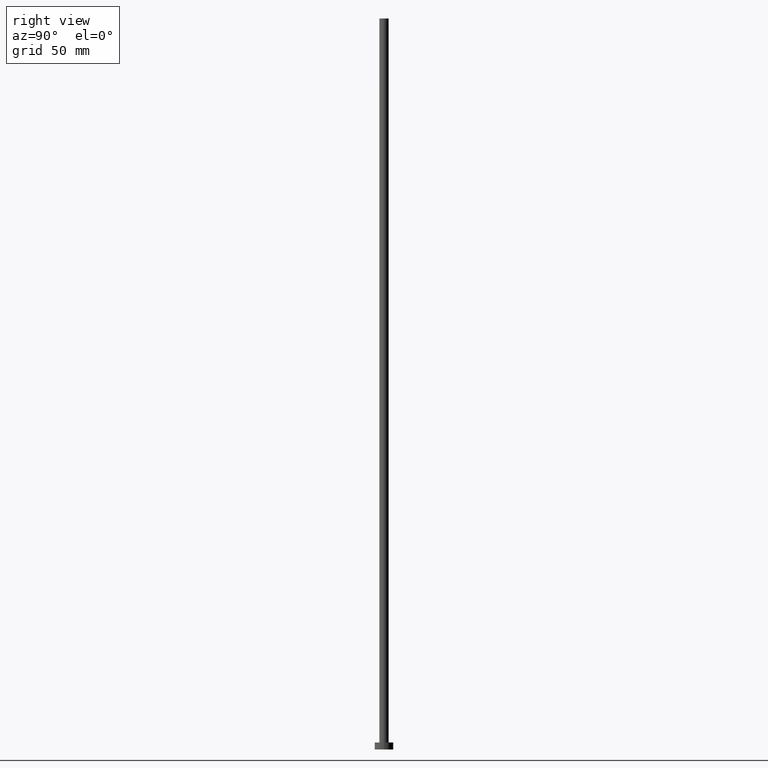
[diagram: clean part render]
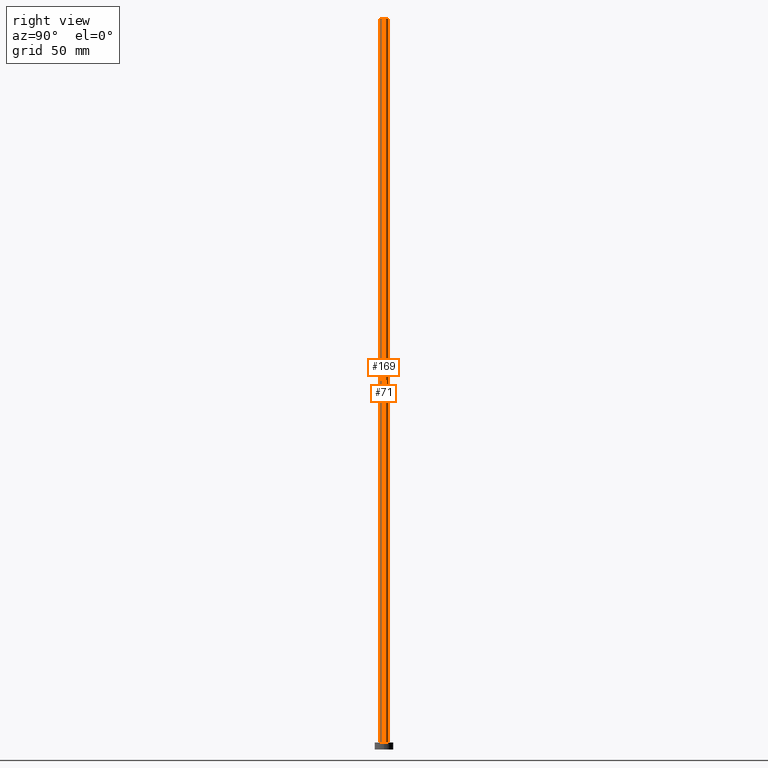
[diagram: same view with one multi-face feature highlighted, each face labeled with its STEP entity id]
A machine part, right view. The highlighted faces form ONE feature: a constant-radius fillet chain: 2 tangent blend faces with common blend radius 2 mm. The faces share edges in the B-rep.
Their STEP definitions:
[1] entity #169 (Cylinder):
#17 = DIRECTION ( 'NONE',  ( 1.000000000000000000, 0.000000000000000000, 0.000000000000000000 ) ) ;
#21 = ORIENTED_EDGE ( 'NONE', *, *, #33, .F. ) ;
#23 = VERTEX_POINT ( 'NONE', #76 ) ;
#33 = EDGE_CURVE ( 'NONE', #23, #48, #139, .T. ) ;
#35 = AXIS2_PLACEMENT_3D ( 'NONE', #233, #253, #17 ) ;
#40 = VERTEX_POINT ( 'NONE', #102 ) ;
#48 = VERTEX_POINT ( 'NONE', #121 ) ;
#53 = DIRECTION ( 'NONE',  ( -0.000000000000000000, -0.000000000000000000, -1.000000000000000000 ) ) ;
#60 = DIRECTION ( 'NONE',  ( 0.000000000000000000, 0.000000000000000000, 1.000000000000000000 ) ) ;
#63 = EDGE_LOOP ( 'NONE', ( #135, #21, #117, #195 ) ) ;
#76 = CARTESIAN_POINT ( 'NONE',  ( -2.000000000000000000, 0.000000000000000000, 315.0000000000000000 ) ) ;
#80 = DIRECTION ( 'NONE',  ( 1.000000000000000000, 0.000000000000000000, 0.000000000000000000 ) ) ;
#90 = DIRECTION ( 'NONE',  ( -1.000000000000000000, 0.000000000000000000, 0.000000000000000000 ) ) ;
#92 = EDGE_CURVE ( 'NONE', #23, #155, #136, .T. ) ;
#102 = CARTESIAN_POINT ( 'NONE',  ( 2.000000000000000000, 2.449293598294706414E-16, 3.000000000000000000 ) ) ;
#113 = DIRECTION ( 'NONE',  ( -0.000000000000000000, -0.000000000000000000, -1.000000000000000000 ) ) ;
#117 = ORIENTED_EDGE ( 'NONE', *, *, #92, .T. ) ;
#121 = CARTESIAN_POINT ( 'NONE',  ( 2.000000000000000000, 2.449293598294706414E-16, 315.0000000000000000 ) ) ;
#133 = VECTOR ( 'NONE', #53, 1000.000000000000000 ) ;
#135 = ORIENTED_EDGE ( 'NONE', *, *, #165, .F. ) ;
#136 = LINE ( 'NONE', #205, #133 ) ;
#139 = CIRCLE ( 'NONE', #204, 2.000000000000000000 ) ;
#141 = CIRCLE ( 'NONE', #35, 2.000000000000000000 ) ;
#144 = VECTOR ( 'NONE', #113, 1000.000000000000000 ) ;
#150 = CARTESIAN_POINT ( 'NONE',  ( 0.000000000000000000, 0.000000000000000000, 315.0000000000000000 ) ) ;
#152 = AXIS2_PLACEMENT_3D ( 'NONE', #188, #206, #90 ) ;
#155 = VERTEX_POINT ( 'NONE', #249 ) ;
#165 = EDGE_CURVE ( 'NONE', #48, #40, #230, .T. ) ;
#169 = ADVANCED_FACE ( 'NONE', ( #234 ), #235, .T. ) ;
#186 = CARTESIAN_POINT ( 'NONE',  ( 2.000000000000000000, 2.449293598294706414E-16, 315.0000000000000000 ) ) ;
#188 = CARTESIAN_POINT ( 'NONE',  ( 0.000000000000000000, 0.000000000000000000, 315.0000000000000000 ) ) ;
#195 = ORIENTED_EDGE ( 'NONE', *, *, #231, .T. ) ;
#204 = AXIS2_PLACEMENT_3D ( 'NONE', #150, #60, #80 ) ;
#205 = CARTESIAN_POINT ( 'NONE',  ( -2.000000000000000000, 0.000000000000000000, 315.0000000000000000 ) ) ;
#206 = DIRECTION ( 'NONE',  ( -0.000000000000000000, -0.000000000000000000, -1.000000000000000000 ) ) ;
#230 = LINE ( 'NONE', #186, #144 ) ;
#231 = EDGE_CURVE ( 'NONE', #155, #40, #141, .T. ) ;
#233 = CARTESIAN_POINT ( 'NONE',  ( 0.000000000000000000, 0.000000000000000000, 3.000000000000000000 ) ) ;
#234 = FACE_OUTER_BOUND ( 'NONE', #63, .T. ) ;
#235 = CYLINDRICAL_SURFACE ( 'NONE', #152, 2.000000000000000000 ) ;
#249 = CARTESIAN_POINT ( 'NONE',  ( -2.000000000000000000, 0.000000000000000000, 3.000000000000000000 ) ) ;
#253 = DIRECTION ( 'NONE',  ( 0.000000000000000000, 0.000000000000000000, 1.000000000000000000 ) ) ;
[2] entity #71 (Cylinder):
#15 = CIRCLE ( 'NONE', #170, 2.000000000000000000 ) ;
#23 = VERTEX_POINT ( 'NONE', #76 ) ;
#30 = DIRECTION ( 'NONE',  ( 0.000000000000000000, 0.000000000000000000, 1.000000000000000000 ) ) ;
#39 = AXIS2_PLACEMENT_3D ( 'NONE', #158, #182, #229 ) ;
#40 = VERTEX_POINT ( 'NONE', #102 ) ;
#48 = VERTEX_POINT ( 'NONE', #121 ) ;
#53 = DIRECTION ( 'NONE',  ( -0.000000000000000000, -0.000000000000000000, -1.000000000000000000 ) ) ;
#55 = CARTESIAN_POINT ( 'NONE',  ( 0.000000000000000000, 0.000000000000000000, 3.000000000000000000 ) ) ;
#71 = ADVANCED_FACE ( 'NONE', ( #185 ), #201, .T. ) ;
#76 = CARTESIAN_POINT ( 'NONE',  ( -2.000000000000000000, 0.000000000000000000, 315.0000000000000000 ) ) ;
#85 = ORIENTED_EDGE ( 'NONE', *, *, #114, .F. ) ;
#92 = EDGE_CURVE ( 'NONE', #23, #155, #136, .T. ) ;
#102 = CARTESIAN_POINT ( 'NONE',  ( 2.000000000000000000, 2.449293598294706414E-16, 3.000000000000000000 ) ) ;
#109 = DIRECTION ( 'NONE',  ( 1.000000000000000000, 0.000000000000000000, 0.000000000000000000 ) ) ;
#113 = DIRECTION ( 'NONE',  ( -0.000000000000000000, -0.000000000000000000, -1.000000000000000000 ) ) ;
#114 = EDGE_CURVE ( 'NONE', #48, #23, #15, .T. ) ;
#119 = ORIENTED_EDGE ( 'NONE', *, *, #165, .T. ) ;
#121 = CARTESIAN_POINT ( 'NONE',  ( 2.000000000000000000, 2.449293598294706414E-16, 315.0000000000000000 ) ) ;
#133 = VECTOR ( 'NONE', #53, 1000.000000000000000 ) ;
#136 = LINE ( 'NONE', #205, #133 ) ;
#144 = VECTOR ( 'NONE', #113, 1000.000000000000000 ) ;
#155 = VERTEX_POINT ( 'NONE', #249 ) ;
#158 = CARTESIAN_POINT ( 'NONE',  ( 0.000000000000000000, 0.000000000000000000, 315.0000000000000000 ) ) ;
#165 = EDGE_CURVE ( 'NONE', #48, #40, #230, .T. ) ;
#166 = DIRECTION ( 'NONE',  ( 0.000000000000000000, 0.000000000000000000, 1.000000000000000000 ) ) ;
#168 = DIRECTION ( 'NONE',  ( 1.000000000000000000, 0.000000000000000000, 0.000000000000000000 ) ) ;
#170 = AXIS2_PLACEMENT_3D ( 'NONE', #250, #30, #109 ) ;
#176 = CIRCLE ( 'NONE', #208, 2.000000000000000000 ) ;
#179 = ORIENTED_EDGE ( 'NONE', *, *, #92, .F. ) ;
#182 = DIRECTION ( 'NONE',  ( -0.000000000000000000, -0.000000000000000000, -1.000000000000000000 ) ) ;
#185 = FACE_OUTER_BOUND ( 'NONE', #246, .T. ) ;
#186 = CARTESIAN_POINT ( 'NONE',  ( 2.000000000000000000, 2.449293598294706414E-16, 315.0000000000000000 ) ) ;
#200 = ORIENTED_EDGE ( 'NONE', *, *, #247, .T. ) ;
#201 = CYLINDRICAL_SURFACE ( 'NONE', #39, 2.000000000000000000 ) ;
#205 = CARTESIAN_POINT ( 'NONE',  ( -2.000000000000000000, 0.000000000000000000, 315.0000000000000000 ) ) ;
#208 = AXIS2_PLACEMENT_3D ( 'NONE', #55, #166, #168 ) ;
#229 = DIRECTION ( 'NONE',  ( -1.000000000000000000, 0.000000000000000000, 0.000000000000000000 ) ) ;
#230 = LINE ( 'NONE', #186, #144 ) ;
#246 = EDGE_LOOP ( 'NONE', ( #85, #119, #200, #179 ) ) ;
#247 = EDGE_CURVE ( 'NONE', #40, #155, #176, .T. ) ;
#249 = CARTESIAN_POINT ( 'NONE',  ( -2.000000000000000000, 0.000000000000000000, 3.000000000000000000 ) ) ;
#250 = CARTESIAN_POINT ( 'NONE',  ( 0.000000000000000000, 0.000000000000000000, 315.0000000000000000 ) ) ;